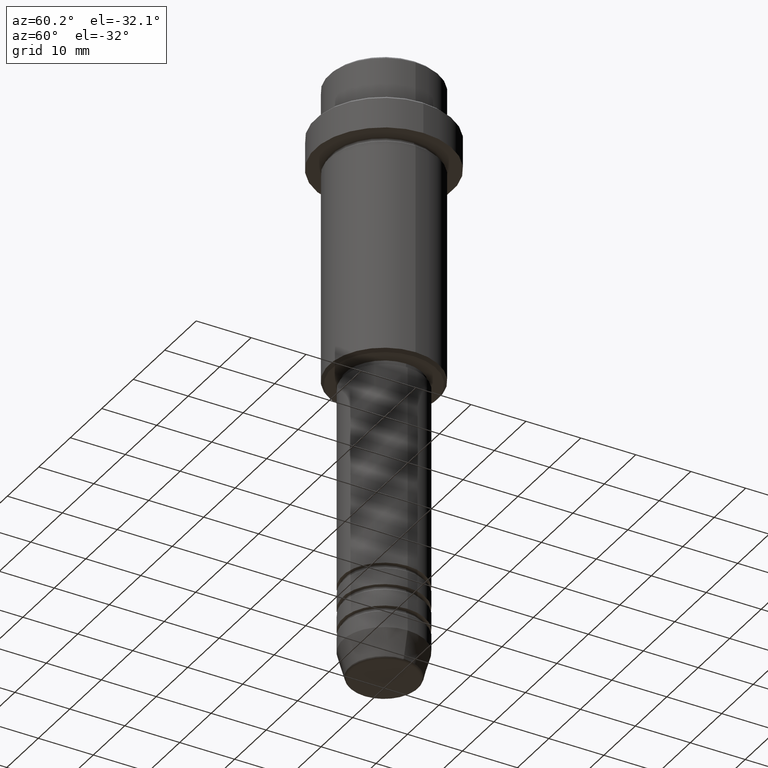
[diagram: clean part render]
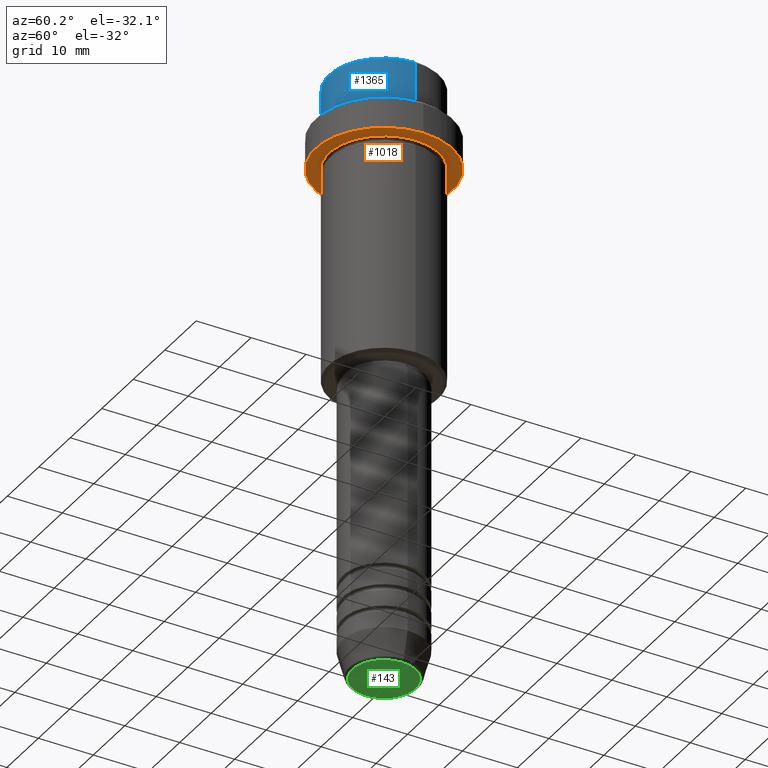
[diagram: same view with three faces highlighted in distinct colors, each labeled with its STEP entity id]
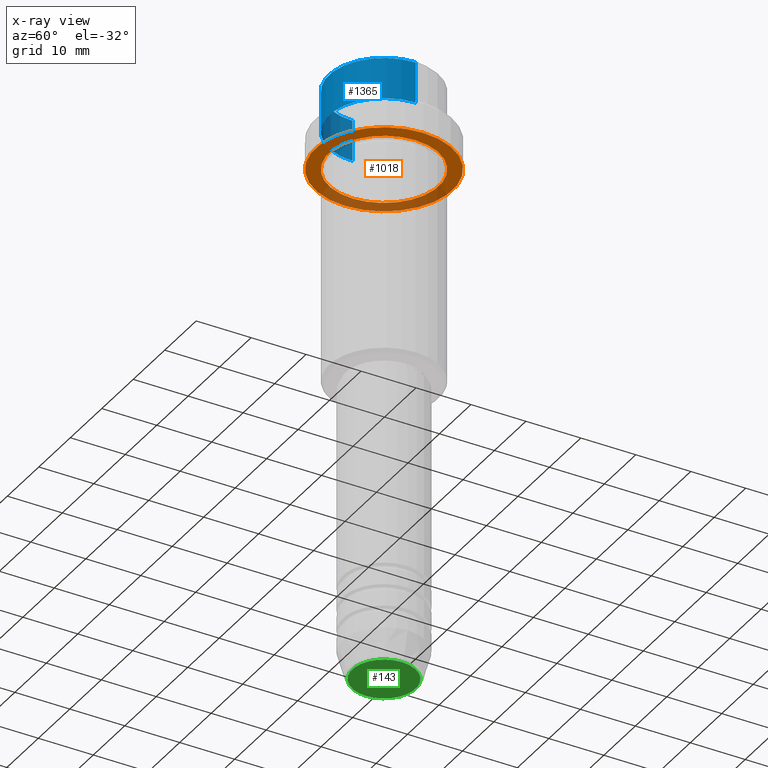
[diagram: x-ray of the same camera — body ghosted, the three highlighted faces saturated]
A machine part, auxiliary view with three faces highlighted in distinct colors.
The next image is the same camera in x-ray (body ghosted, the three faces saturated) — at least one of them is partly hidden behind the body in this view.
Their STEP definitions:

[orange] entity #1018 — the highlighted planar face has unit normal (0, 0, -1).
#11 = DIRECTION ( 'NONE',  ( -0.000000000000000000, -0.000000000000000000, 1.000000000000000000 ) ) ;
#15 = VERTEX_POINT ( 'NONE', #302 ) ;
#24 = EDGE_CURVE ( 'NONE', #1415, #15, #392, .T. ) ;
#32 = CARTESIAN_POINT ( 'NONE',  ( 0.000000000000000000, 0.000000000000000000, -15.00000000000000000 ) ) ;
#67 = DIRECTION ( 'NONE',  ( 1.000000000000000000, 0.000000000000000000, 0.000000000000000000 ) ) ;
#192 = VERTEX_POINT ( 'NONE', #881 ) ;
#198 = CARTESIAN_POINT ( 'NONE',  ( 9.999999999999994671, 1.224646799147352665E-15, -15.00000000000000000 ) ) ;
#219 = EDGE_CURVE ( 'NONE', #15, #1415, #620, .T. ) ;
#231 = AXIS2_PLACEMENT_3D ( 'NONE', #750, #844, #1170 ) ;
#234 = ORIENTED_EDGE ( 'NONE', *, *, #598, .T. ) ;
#247 = FACE_BOUND ( 'NONE', #1401, .T. ) ;
#249 = EDGE_LOOP ( 'NONE', ( #941, #703 ) ) ;
#271 = VERTEX_POINT ( 'NONE', #198 ) ;
#302 = CARTESIAN_POINT ( 'NONE',  ( 12.50000000000000000, 0.000000000000000000, -15.00000000000000178 ) ) ;
#346 = EDGE_CURVE ( 'NONE', #192, #271, #413, .T. ) ;
#392 = CIRCLE ( 'NONE', #231, 12.50000000000000000 ) ;
#413 = CIRCLE ( 'NONE', #842, 9.999999999999994671 ) ;
#471 = ORIENTED_EDGE ( 'NONE', *, *, #346, .T. ) ;
#551 = CARTESIAN_POINT ( 'NONE',  ( 0.000000000000000000, 0.000000000000000000, -15.00000000000000000 ) ) ;
#574 = DIRECTION ( 'NONE',  ( 0.000000000000000000, 0.000000000000000000, -1.000000000000000000 ) ) ;
#593 = CARTESIAN_POINT ( 'NONE',  ( 0.000000000000000000, 12.50000000000000000, -15.00000000000000000 ) ) ;
#598 = EDGE_CURVE ( 'NONE', #271, #192, #1161, .T. ) ;
#605 = AXIS2_PLACEMENT_3D ( 'NONE', #593, #574, #1198 ) ;
#620 = CIRCLE ( 'NONE', #1354, 12.50000000000000000 ) ;
#627 = DIRECTION ( 'NONE',  ( -0.000000000000000000, -0.000000000000000000, 1.000000000000000000 ) ) ;
#680 = FACE_OUTER_BOUND ( 'NONE', #249, .T. ) ;
#703 = ORIENTED_EDGE ( 'NONE', *, *, #24, .F. ) ;
#750 = CARTESIAN_POINT ( 'NONE',  ( 0.000000000000000000, 0.000000000000000000, -15.00000000000000178 ) ) ;
#842 = AXIS2_PLACEMENT_3D ( 'NONE', #551, #11, #1411 ) ;
#844 = DIRECTION ( 'NONE',  ( -0.000000000000000000, -0.000000000000000000, 1.000000000000000000 ) ) ;
#881 = CARTESIAN_POINT ( 'NONE',  ( -9.999999999999994671, 0.000000000000000000, -15.00000000000000000 ) ) ;
#941 = ORIENTED_EDGE ( 'NONE', *, *, #219, .F. ) ;
#956 = CARTESIAN_POINT ( 'NONE',  ( -12.50000000000000000, 1.530808498934191521E-15, -15.00000000000000178 ) ) ;
#988 = DIRECTION ( 'NONE',  ( -0.000000000000000000, -0.000000000000000000, 1.000000000000000000 ) ) ;
#1018 = ADVANCED_FACE ( 'NONE', ( #247, #680 ), #1105, .T. ) ;
#1093 = AXIS2_PLACEMENT_3D ( 'NONE', #32, #988, #1327 ) ;
#1105 = PLANE ( 'NONE',  #605 ) ;
#1161 = CIRCLE ( 'NONE', #1093, 9.999999999999994671 ) ;
#1170 = DIRECTION ( 'NONE',  ( 1.000000000000000000, 0.000000000000000000, 0.000000000000000000 ) ) ;
#1198 = DIRECTION ( 'NONE',  ( -1.000000000000000000, 0.000000000000000000, -0.000000000000000000 ) ) ;
#1266 = CARTESIAN_POINT ( 'NONE',  ( 0.000000000000000000, 0.000000000000000000, -15.00000000000000178 ) ) ;
#1327 = DIRECTION ( 'NONE',  ( -1.000000000000000000, 0.000000000000000000, 0.000000000000000000 ) ) ;
#1354 = AXIS2_PLACEMENT_3D ( 'NONE', #1266, #627, #67 ) ;
#1401 = EDGE_LOOP ( 'NONE', ( #471, #234 ) ) ;
#1411 = DIRECTION ( 'NONE',  ( -1.000000000000000000, 0.000000000000000000, 0.000000000000000000 ) ) ;
#1415 = VERTEX_POINT ( 'NONE', #956 ) ;

[blue] entity #1365 — the highlighted cylindrical surface (partial cylindrical patch) has radius 10 mm, axis along (-0, -0, 1).
#44 = LINE ( 'NONE', #1041, #90 ) ;
#52 = AXIS2_PLACEMENT_3D ( 'NONE', #399, #733, #1370 ) ;
#90 = VECTOR ( 'NONE', #1278, 1000.000000000000000 ) ;
#155 = CARTESIAN_POINT ( 'NONE',  ( 9.999999999999998224, 0.000000000000000000, 0.000000000000000000 ) ) ;
#191 = AXIS2_PLACEMENT_3D ( 'NONE', #1413, #222, #1168 ) ;
#222 = DIRECTION ( 'NONE',  ( -0.000000000000000000, -0.000000000000000000, 1.000000000000000000 ) ) ;
#240 = VERTEX_POINT ( 'NONE', #513 ) ;
#296 = EDGE_CURVE ( 'NONE', #1124, #240, #1231, .T. ) ;
#297 = EDGE_CURVE ( 'NONE', #701, #1347, #44, .T. ) ;
#299 = CARTESIAN_POINT ( 'NONE',  ( -9.999999999999998224, 1.224646799147353059E-15, -7.999999999999998224 ) ) ;
#327 = DIRECTION ( 'NONE',  ( -0.000000000000000000, -0.000000000000000000, 1.000000000000000000 ) ) ;
#399 = CARTESIAN_POINT ( 'NONE',  ( 0.000000000000000000, 0.000000000000000000, -0.4999999999999970024 ) ) ;
#400 = ORIENTED_EDGE ( 'NONE', *, *, #938, .T. ) ;
#437 = DIRECTION ( 'NONE',  ( 1.000000000000000000, 0.000000000000000000, 0.000000000000000000 ) ) ;
#513 = CARTESIAN_POINT ( 'NONE',  ( 9.999999999999998224, 0.000000000000000000, -0.4999999999999970024 ) ) ;
#590 = DIRECTION ( 'NONE',  ( -0.000000000000000000, -0.000000000000000000, 1.000000000000000000 ) ) ;
#649 = ORIENTED_EDGE ( 'NONE', *, *, #815, .T. ) ;
#669 = CIRCLE ( 'NONE', #52, 9.999999999999998224 ) ;
#701 = VERTEX_POINT ( 'NONE', #299 ) ;
#733 = DIRECTION ( 'NONE',  ( 0.000000000000000000, 0.000000000000000000, -1.000000000000000000 ) ) ;
#737 = FACE_OUTER_BOUND ( 'NONE', #1050, .T. ) ;
#776 = AXIS2_PLACEMENT_3D ( 'NONE', #1414, #327, #437 ) ;
#815 = EDGE_CURVE ( 'NONE', #240, #1347, #669, .T. ) ;
#935 = CIRCLE ( 'NONE', #776, 9.999999999999998224 ) ;
#938 = EDGE_CURVE ( 'NONE', #701, #1124, #935, .T. ) ;
#955 = ORIENTED_EDGE ( 'NONE', *, *, #296, .T. ) ;
#1041 = CARTESIAN_POINT ( 'NONE',  ( -9.999999999999998224, 1.224646799147353059E-15, 0.000000000000000000 ) ) ;
#1050 = EDGE_LOOP ( 'NONE', ( #1226, #400, #955, #649 ) ) ;
#1124 = VERTEX_POINT ( 'NONE', #1253 ) ;
#1168 = DIRECTION ( 'NONE',  ( 1.000000000000000000, 0.000000000000000000, 0.000000000000000000 ) ) ;
#1171 = CYLINDRICAL_SURFACE ( 'NONE', #191, 9.999999999999998224 ) ;
#1226 = ORIENTED_EDGE ( 'NONE', *, *, #297, .F. ) ;
#1231 = LINE ( 'NONE', #155, #1394 ) ;
#1253 = CARTESIAN_POINT ( 'NONE',  ( 9.999999999999998224, 0.000000000000000000, -7.999999999999998224 ) ) ;
#1278 = DIRECTION ( 'NONE',  ( -0.000000000000000000, -0.000000000000000000, 1.000000000000000000 ) ) ;
#1313 = CARTESIAN_POINT ( 'NONE',  ( -9.999999999999998224, 1.224646799147353059E-15, -0.4999999999999970024 ) ) ;
#1347 = VERTEX_POINT ( 'NONE', #1313 ) ;
#1365 = ADVANCED_FACE ( 'NONE', ( #737 ), #1171, .T. ) ;
#1370 = DIRECTION ( 'NONE',  ( 1.000000000000000000, 0.000000000000000000, 0.000000000000000000 ) ) ;
#1394 = VECTOR ( 'NONE', #590, 1000.000000000000000 ) ;
#1413 = CARTESIAN_POINT ( 'NONE',  ( 0.000000000000000000, 0.000000000000000000, 0.000000000000000000 ) ) ;
#1414 = CARTESIAN_POINT ( 'NONE',  ( 0.000000000000000000, 0.000000000000000000, -7.999999999999998224 ) ) ;

[green] entity #143 — the highlighted planar face has unit normal (0, -0, 1).
#18 = EDGE_LOOP ( 'NONE', ( #849, #224 ) ) ;
#56 = CIRCLE ( 'NONE', #976, 5.776590543854905668 ) ;
#94 = AXIS2_PLACEMENT_3D ( 'NONE', #133, #256, #699 ) ;
#133 = CARTESIAN_POINT ( 'NONE',  ( 0.000000000000000000, 0.000000000000000000, -110.0000000000000000 ) ) ;
#143 = ADVANCED_FACE ( 'NONE', ( #876 ), #1215, .F. ) ;
#224 = ORIENTED_EDGE ( 'NONE', *, *, #609, .T. ) ;
#225 = CARTESIAN_POINT ( 'NONE',  ( 5.776590543854905668, 0.000000000000000000, -110.0000000000000000 ) ) ;
#256 = DIRECTION ( 'NONE',  ( 0.000000000000000000, 0.000000000000000000, -1.000000000000000000 ) ) ;
#257 = AXIS2_PLACEMENT_3D ( 'NONE', #787, #357, #1223 ) ;
#277 = VERTEX_POINT ( 'NONE', #1055 ) ;
#357 = DIRECTION ( 'NONE',  ( 0.000000000000000000, -0.000000000000000000, 1.000000000000000000 ) ) ;
#426 = VERTEX_POINT ( 'NONE', #225 ) ;
#556 = DIRECTION ( 'NONE',  ( 0.000000000000000000, 0.000000000000000000, -1.000000000000000000 ) ) ;
#609 = EDGE_CURVE ( 'NONE', #277, #426, #1333, .T. ) ;
#653 = CARTESIAN_POINT ( 'NONE',  ( 0.000000000000000000, 0.000000000000000000, -110.0000000000000000 ) ) ;
#699 = DIRECTION ( 'NONE',  ( 1.000000000000000000, 0.000000000000000000, 0.000000000000000000 ) ) ;
#754 = DIRECTION ( 'NONE',  ( 1.000000000000000000, 0.000000000000000000, 0.000000000000000000 ) ) ;
#787 = CARTESIAN_POINT ( 'NONE',  ( 0.000000000000000000, 0.000000000000000000, -110.0000000000000000 ) ) ;
#849 = ORIENTED_EDGE ( 'NONE', *, *, #958, .T. ) ;
#876 = FACE_OUTER_BOUND ( 'NONE', #18, .T. ) ;
#958 = EDGE_CURVE ( 'NONE', #426, #277, #56, .T. ) ;
#976 = AXIS2_PLACEMENT_3D ( 'NONE', #653, #556, #754 ) ;
#1055 = CARTESIAN_POINT ( 'NONE',  ( -5.776590543854905668, 7.370012612361445601E-16, -110.0000000000000000 ) ) ;
#1215 = PLANE ( 'NONE',  #257 ) ;
#1223 = DIRECTION ( 'NONE',  ( 1.000000000000000000, 0.000000000000000000, 0.000000000000000000 ) ) ;
#1333 = CIRCLE ( 'NONE', #94, 5.776590543854905668 ) ;